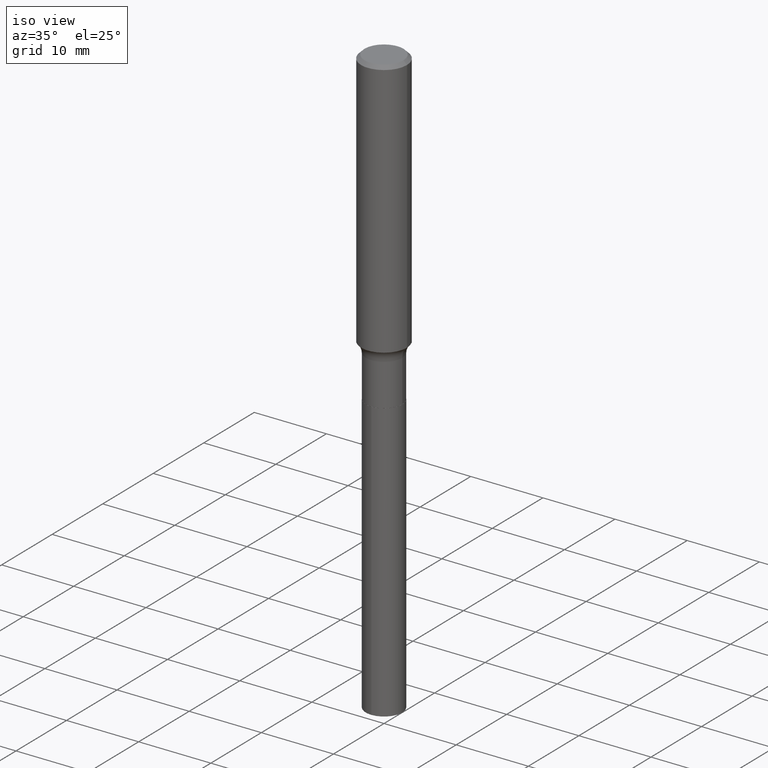
[diagram: clean part render]
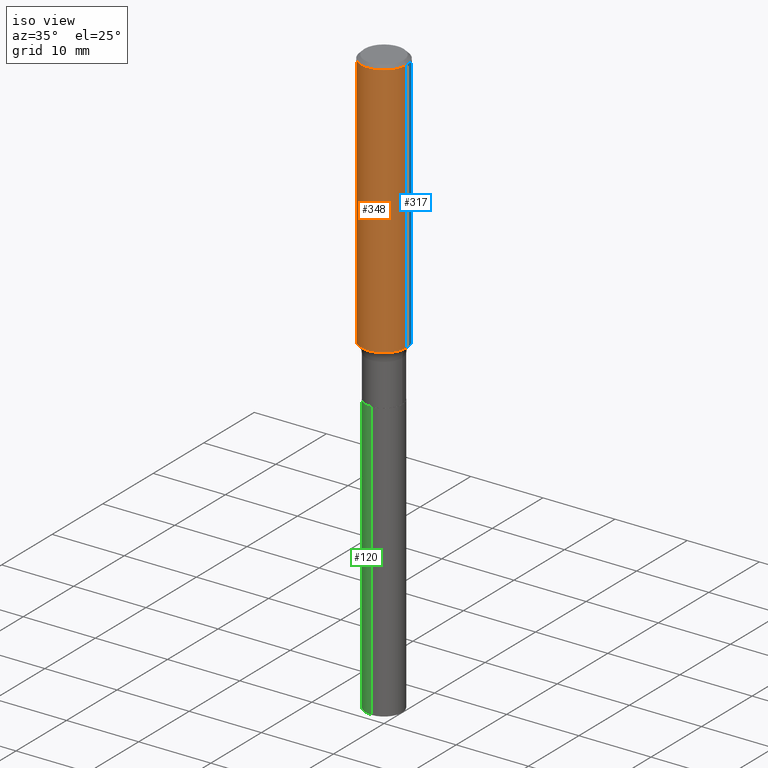
[diagram: same view with three faces highlighted in distinct colors, each labeled with its STEP entity id]
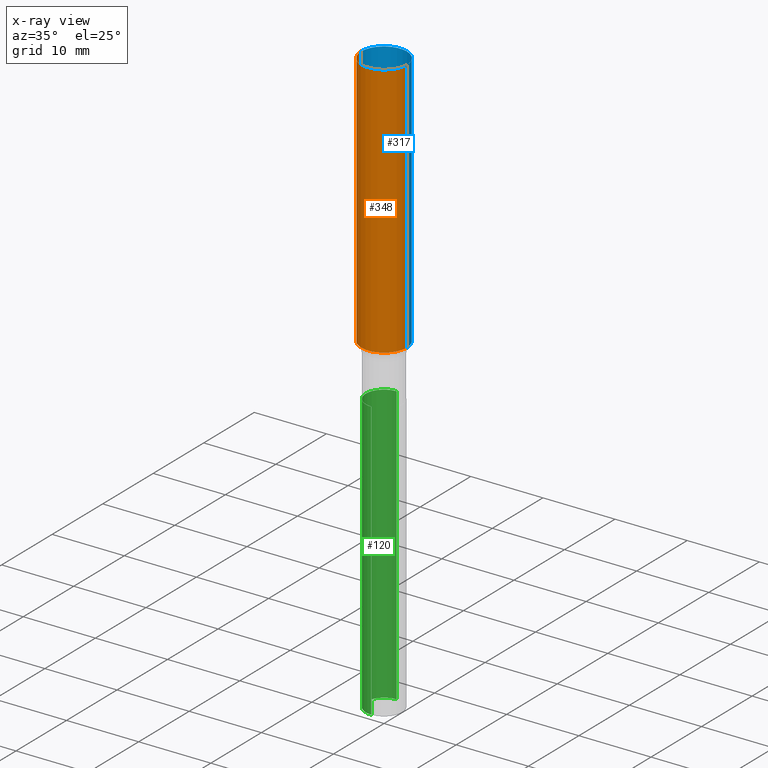
[diagram: x-ray of the same camera — body ghosted, the three highlighted faces saturated]
A machine part, iso view with three faces highlighted in distinct colors.
The next image is the same camera in x-ray (body ghosted, the three faces saturated) — at least one of them is partly hidden behind the body in this view.
Their STEP definitions:

[orange] entity #348 — the highlighted cylindrical surface (edge-blend (fillet) strip) has radius 3.175 mm, axis along (-0, 0, 1).
#21 = LINE ( 'NONE', #484, #388 ) ;
#34 = EDGE_CURVE ( 'NONE', #382, #66, #475, .T. ) ;
#35 = ORIENTED_EDGE ( 'NONE', *, *, #78, .T. ) ;
#36 = CIRCLE ( 'NONE', #462, 0.1250000000000001665 ) ;
#46 = ORIENTED_EDGE ( 'NONE', *, *, #305, .F. ) ;
#58 = CARTESIAN_POINT ( 'NONE',  ( -0.1250000000000001388, -4.043236422096399884E-15, -1.412413346430911654 ) ) ;
#62 = VERTEX_POINT ( 'NONE', #58 ) ;
#66 = VERTEX_POINT ( 'NONE', #467 ) ;
#78 = EDGE_CURVE ( 'NONE', #477, #66, #21, .T. ) ;
#97 = DIRECTION ( 'NONE',  ( -2.445468806185136597E-29, 3.491481338843145583E-15, 1.000000000000000000 ) ) ;
#102 = VECTOR ( 'NONE', #228, 39.37007874015748143 ) ;
#107 = CARTESIAN_POINT ( 'NONE',  ( 3.454012780136355441E-29, -4.931414841796526694E-15, -1.412413346430911654 ) ) ;
#149 = CARTESIAN_POINT ( 'NONE',  ( -0.1250000000000000000, -1.610261638749791898E-15, -0.01875000000000012768 ) ) ;
#176 = ORIENTED_EDGE ( 'NONE', *, *, #385, .T. ) ;
#182 = FACE_OUTER_BOUND ( 'NONE', #187, .T. ) ;
#187 = EDGE_LOOP ( 'NONE', ( #46, #176, #35, #237 ) ) ;
#189 = DIRECTION ( 'NONE',  ( 1.000000000000000000, -6.982962677686266711E-15, 4.876176775795935793E-29 ) ) ;
#215 = CARTESIAN_POINT ( 'NONE',  ( 0.1250000000000001388, -5.804285176507311611E-15, -1.412413346430911654 ) ) ;
#222 = DIRECTION ( 'NONE',  ( -2.445468806185136877E-29, 3.491481338843145188E-15, 1.000000000000000000 ) ) ;
#228 = DIRECTION ( 'NONE',  ( -2.445468806185136877E-29, 3.491481338843145188E-15, 1.000000000000000000 ) ) ;
#230 = DIRECTION ( 'NONE',  ( 1.000000000000000000, -6.982962677686269077E-15, 0.000000000000000000 ) ) ;
#237 = ORIENTED_EDGE ( 'NONE', *, *, #34, .F. ) ;
#242 = CARTESIAN_POINT ( 'NONE',  ( 4.585254011597162998E-31, -6.546527510330942834E-17, -0.01875000000000012768 ) ) ;
#266 = DIRECTION ( 'NONE',  ( -2.445468806185136597E-29, 3.491481338843145583E-15, 1.000000000000000000 ) ) ;
#305 = EDGE_CURVE ( 'NONE', #62, #382, #363, .T. ) ;
#312 = DIRECTION ( 'NONE',  ( -2.445468806185136597E-29, 3.491481338843145583E-15, 1.000000000000000000 ) ) ;
#348 = ADVANCED_FACE ( 'NONE', ( #182 ), #482, .T. ) ;
#363 = LINE ( 'NONE', #433, #102 ) ;
#382 = VERTEX_POINT ( 'NONE', #149 ) ;
#384 = DIRECTION ( 'NONE',  ( 1.000000000000000000, -6.982962677686266711E-15, 0.000000000000000000 ) ) ;
#385 = EDGE_CURVE ( 'NONE', #62, #477, #36, .T. ) ;
#388 = VECTOR ( 'NONE', #222, 39.37007874015748143 ) ;
#433 = CARTESIAN_POINT ( 'NONE',  ( -0.1250000000000000833, 8.881784197001258240E-16, -6.148668862818636431E-30 ) ) ;
#442 = CARTESIAN_POINT ( 'NONE',  ( 0.000000000000000000, 0.000000000000000000, 0.000000000000000000 ) ) ;
#452 = AXIS2_PLACEMENT_3D ( 'NONE', #242, #312, #384 ) ;
#453 = AXIS2_PLACEMENT_3D ( 'NONE', #442, #97, #189 ) ;
#462 = AXIS2_PLACEMENT_3D ( 'NONE', #107, #266, #230 ) ;
#467 = CARTESIAN_POINT ( 'NONE',  ( 0.1250000000000000000, -9.383356098140928781E-16, -0.01875000000000012768 ) ) ;
#475 = CIRCLE ( 'NONE', #452, 0.1250000000000000000 ) ;
#477 = VERTEX_POINT ( 'NONE', #215 ) ;
#482 = CYLINDRICAL_SURFACE ( 'NONE', #453, 0.1250000000000000833 ) ;
#484 = CARTESIAN_POINT ( 'NONE',  ( 0.1250000000000000833, -8.728703347107839305E-16, 6.095220969744923945E-30 ) ) ;

[blue] entity #317 — the highlighted cylindrical surface (edge-blend (fillet) strip) has radius 3.175 mm, axis along (-0, 0, 1).
#21 = LINE ( 'NONE', #484, #388 ) ;
#39 = ORIENTED_EDGE ( 'NONE', *, *, #256, .F. ) ;
#58 = CARTESIAN_POINT ( 'NONE',  ( -0.1250000000000001388, -4.043236422096399884E-15, -1.412413346430911654 ) ) ;
#62 = VERTEX_POINT ( 'NONE', #58 ) ;
#66 = VERTEX_POINT ( 'NONE', #467 ) ;
#71 = AXIS2_PLACEMENT_3D ( 'NONE', #336, #138, #372 ) ;
#78 = EDGE_CURVE ( 'NONE', #477, #66, #21, .T. ) ;
#102 = VECTOR ( 'NONE', #228, 39.37007874015748143 ) ;
#111 = CIRCLE ( 'NONE', #121, 0.1250000000000000000 ) ;
#121 = AXIS2_PLACEMENT_3D ( 'NONE', #300, #168, #303 ) ;
#134 = ORIENTED_EDGE ( 'NONE', *, *, #78, .F. ) ;
#138 = DIRECTION ( 'NONE',  ( -2.445468806185136597E-29, 3.491481338843145583E-15, 1.000000000000000000 ) ) ;
#149 = CARTESIAN_POINT ( 'NONE',  ( -0.1250000000000000000, -1.610261638749791898E-15, -0.01875000000000012768 ) ) ;
#157 = CARTESIAN_POINT ( 'NONE',  ( 3.454012780136355441E-29, -4.931414841796526694E-15, -1.412413346430911654 ) ) ;
#158 = DIRECTION ( 'NONE',  ( 1.000000000000000000, -6.982962677686269077E-15, 0.000000000000000000 ) ) ;
#168 = DIRECTION ( 'NONE',  ( -2.445468806185136597E-29, 3.491481338843145583E-15, 1.000000000000000000 ) ) ;
#215 = CARTESIAN_POINT ( 'NONE',  ( 0.1250000000000001388, -5.804285176507311611E-15, -1.412413346430911654 ) ) ;
#222 = DIRECTION ( 'NONE',  ( -2.445468806185136877E-29, 3.491481338843145188E-15, 1.000000000000000000 ) ) ;
#228 = DIRECTION ( 'NONE',  ( -2.445468806185136877E-29, 3.491481338843145188E-15, 1.000000000000000000 ) ) ;
#250 = CIRCLE ( 'NONE', #290, 0.1250000000000001665 ) ;
#256 = EDGE_CURVE ( 'NONE', #66, #382, #111, .T. ) ;
#284 = ORIENTED_EDGE ( 'NONE', *, *, #305, .T. ) ;
#290 = AXIS2_PLACEMENT_3D ( 'NONE', #157, #455, #158 ) ;
#300 = CARTESIAN_POINT ( 'NONE',  ( 4.585254011597162998E-31, -6.546527510330942834E-17, -0.01875000000000012768 ) ) ;
#303 = DIRECTION ( 'NONE',  ( 1.000000000000000000, -6.982962677686266711E-15, 0.000000000000000000 ) ) ;
#305 = EDGE_CURVE ( 'NONE', #62, #382, #363, .T. ) ;
#310 = ORIENTED_EDGE ( 'NONE', *, *, #356, .T. ) ;
#317 = ADVANCED_FACE ( 'NONE', ( #473 ), #406, .T. ) ;
#336 = CARTESIAN_POINT ( 'NONE',  ( 0.000000000000000000, 0.000000000000000000, 0.000000000000000000 ) ) ;
#339 = EDGE_LOOP ( 'NONE', ( #310, #284, #39, #134 ) ) ;
#356 = EDGE_CURVE ( 'NONE', #477, #62, #250, .T. ) ;
#363 = LINE ( 'NONE', #433, #102 ) ;
#372 = DIRECTION ( 'NONE',  ( 1.000000000000000000, -6.982962677686266711E-15, 4.876176775795935793E-29 ) ) ;
#382 = VERTEX_POINT ( 'NONE', #149 ) ;
#388 = VECTOR ( 'NONE', #222, 39.37007874015748143 ) ;
#406 = CYLINDRICAL_SURFACE ( 'NONE', #71, 0.1250000000000000833 ) ;
#433 = CARTESIAN_POINT ( 'NONE',  ( -0.1250000000000000833, 8.881784197001258240E-16, -6.148668862818636431E-30 ) ) ;
#455 = DIRECTION ( 'NONE',  ( -2.445468806185136597E-29, 3.491481338843145583E-15, 1.000000000000000000 ) ) ;
#467 = CARTESIAN_POINT ( 'NONE',  ( 0.1250000000000000000, -9.383356098140928781E-16, -0.01875000000000012768 ) ) ;
#473 = FACE_OUTER_BOUND ( 'NONE', #339, .T. ) ;
#477 = VERTEX_POINT ( 'NONE', #215 ) ;
#484 = CARTESIAN_POINT ( 'NONE',  ( 0.1250000000000000833, -8.728703347107839305E-16, 6.095220969744923945E-30 ) ) ;

[green] entity #120 — the highlighted cylindrical surface (edge-blend (fillet) strip) has radius 2.5273 mm, axis along (-0, 0, 1).
#5 = CIRCLE ( 'NONE', #224, 0.09950000000000000511 ) ;
#8 = EDGE_CURVE ( 'NONE', #351, #342, #314, .T. ) ;
#38 = DIRECTION ( 'NONE',  ( -2.445480960601985091E-29, 3.491463933026432344E-15, 1.000000000000000000 ) ) ;
#51 = ORIENTED_EDGE ( 'NONE', *, *, #56, .F. ) ;
#56 = EDGE_CURVE ( 'NONE', #351, #281, #353, .T. ) ;
#76 = CARTESIAN_POINT ( 'NONE',  ( 7.069900220813783115E-16, 0.09949999999998877798, -3.218627770506540919 ) ) ;
#101 = AXIS2_PLACEMENT_3D ( 'NONE', #318, #118, #421 ) ;
#103 = CARTESIAN_POINT ( 'NONE',  ( 4.154851501708547396E-29, -5.932026794694504207E-15, -1.699000000000000066 ) ) ;
#104 = ORIENTED_EDGE ( 'NONE', *, *, #231, .T. ) ;
#118 = DIRECTION ( 'NONE',  ( -2.445480960601985091E-29, 3.491463933026432344E-15, 1.000000000000000000 ) ) ;
#120 = ADVANCED_FACE ( 'NONE', ( #135 ), #391, .T. ) ;
#124 = CARTESIAN_POINT ( 'NONE',  ( 7.069900220813411364E-16, 0.09949999999999407929, -1.699000000000000288 ) ) ;
#132 = CARTESIAN_POINT ( 'NONE',  ( 4.154851501708547396E-29, -5.932026794694504207E-15, -1.699000000000000066 ) ) ;
#135 = FACE_OUTER_BOUND ( 'NONE', #180, .T. ) ;
#180 = EDGE_LOOP ( 'NONE', ( #51, #434, #104, #298 ) ) ;
#197 = CARTESIAN_POINT ( 'NONE',  ( -6.948047864297420515E-16, -0.09950000000000593092, -1.698999999999999844 ) ) ;
#224 = AXIS2_PLACEMENT_3D ( 'NONE', #103, #38, #415 ) ;
#231 = EDGE_CURVE ( 'NONE', #342, #443, #319, .T. ) ;
#239 = CARTESIAN_POINT ( 'NONE',  ( -6.948047864297420515E-16, -0.09950000000000593092, -1.698999999999999844 ) ) ;
#246 = DIRECTION ( 'NONE',  ( -2.445480960601985371E-29, 3.491463933026432738E-15, 1.000000000000000000 ) ) ;
#268 = VECTOR ( 'NONE', #246, 39.37007874015748143 ) ;
#281 = VERTEX_POINT ( 'NONE', #286 ) ;
#286 = CARTESIAN_POINT ( 'NONE',  ( 7.069900220813788045E-16, 0.09949999999999409317, -1.699000000000000288 ) ) ;
#292 = CARTESIAN_POINT ( 'NONE',  ( -6.948047864297048764E-16, -0.09950000000001124612, -3.218627770506540031 ) ) ;
#298 = ORIENTED_EDGE ( 'NONE', *, *, #364, .F. ) ;
#314 = CIRCLE ( 'NONE', #101, 0.09950000000000000511 ) ;
#318 = CARTESIAN_POINT ( 'NONE',  ( 7.871072281684335663E-29, -1.123775234704346175E-14, -3.218627770506540475 ) ) ;
#319 = LINE ( 'NONE', #239, #489 ) ;
#342 = VERTEX_POINT ( 'NONE', #292 ) ;
#351 = VERTEX_POINT ( 'NONE', #76 ) ;
#352 = DIRECTION ( 'NONE',  ( -2.445480960601985371E-29, 3.491463933026432738E-15, 1.000000000000000000 ) ) ;
#353 = LINE ( 'NONE', #124, #268 ) ;
#364 = EDGE_CURVE ( 'NONE', #281, #443, #5, .T. ) ;
#391 = CYLINDRICAL_SURFACE ( 'NONE', #419, 0.09950000000000000511 ) ;
#404 = DIRECTION ( 'NONE',  ( -2.445480960601985091E-29, 3.491463933026432344E-15, 1.000000000000000000 ) ) ;
#415 = DIRECTION ( 'NONE',  ( -6.982962677686266711E-15, -1.000000000000000000, 2.745575873029409967E-15 ) ) ;
#419 = AXIS2_PLACEMENT_3D ( 'NONE', #132, #404, #479 ) ;
#421 = DIRECTION ( 'NONE',  ( -6.982962677686266711E-15, -1.000000000000000000, 5.491151746058819933E-15 ) ) ;
#434 = ORIENTED_EDGE ( 'NONE', *, *, #8, .T. ) ;
#443 = VERTEX_POINT ( 'NONE', #197 ) ;
#479 = DIRECTION ( 'NONE',  ( -6.982962677686266711E-15, -1.000000000000000000, 2.745575873029409967E-15 ) ) ;
#489 = VECTOR ( 'NONE', #352, 39.37007874015748143 ) ;